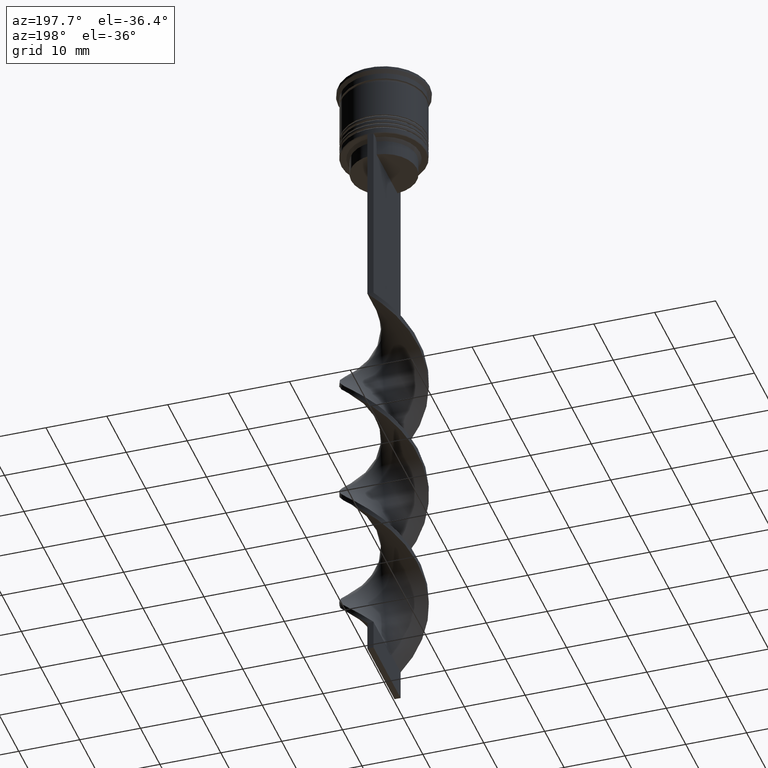
[diagram: clean part render]
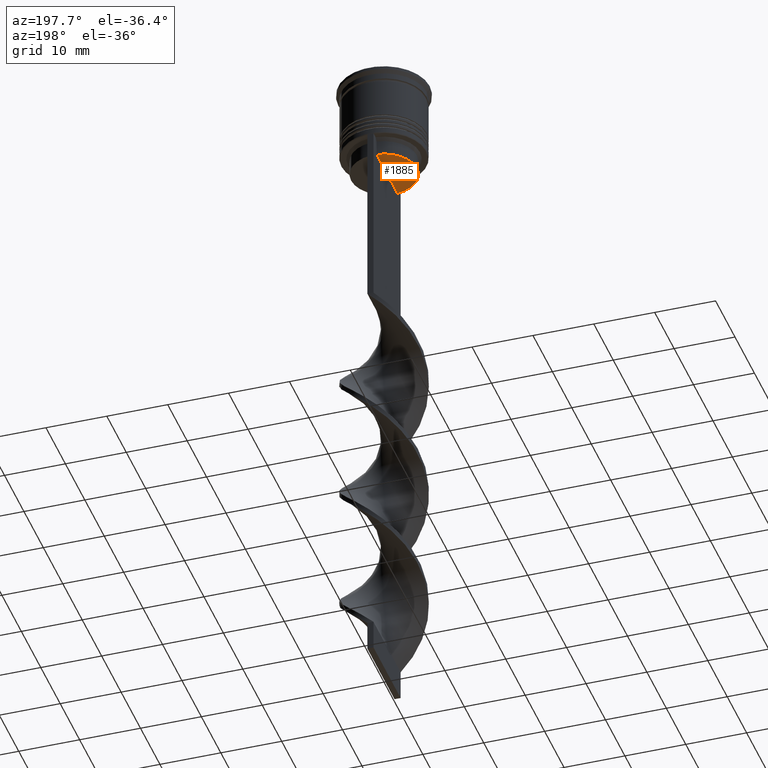
[diagram: same view with one face highlighted and labeled with its STEP entity id]
A machine part, auxiliary view. The second image highlights one B-rep face of the part: STEP entity #1885.
In plain terms, the highlighted planar face has unit normal (0, -0, 1).
Its self-contained STEP definition (entity closure, byte-faithful):
#82 = DIRECTION ( 'NONE',  ( 1.000000000000000000, 0.000000000000000000, 0.000000000000000000 ) ) ;
#328 = DIRECTION ( 'NONE',  ( -0.000000000000000000, -0.000000000000000000, 1.000000000000000000 ) ) ;
#457 = CARTESIAN_POINT ( 'NONE',  ( -0.5000000000000000000, 5.376802023508029826, -15.50000000000000000 ) ) ;
#579 = CARTESIAN_POINT ( 'NONE',  ( 0.000000000000000000, 5.400000000000003908, -15.50000000000000000 ) ) ;
#920 = PLANE ( 'NONE',  #969 ) ;
#934 = DIRECTION ( 'NONE',  ( 0.000000000000000000, -1.000000000000000000, 0.000000000000000000 ) ) ;
#969 = AXIS2_PLACEMENT_3D ( 'NONE', #579, #1183, #82 ) ;
#1002 = ORIENTED_EDGE ( 'NONE', *, *, #1941, .F. ) ;
#1168 = FACE_OUTER_BOUND ( 'NONE', #2080, .T. ) ;
#1183 = DIRECTION ( 'NONE',  ( 0.000000000000000000, -0.000000000000000000, 1.000000000000000000 ) ) ;
#1585 = CARTESIAN_POINT ( 'NONE',  ( -0.5000000000000000000, -5.376802023508029826, -15.50000000000000000 ) ) ;
#1597 = AXIS2_PLACEMENT_3D ( 'NONE', #3425, #328, #1967 ) ;
#1609 = VERTEX_POINT ( 'NONE', #1585 ) ;
#1747 = CARTESIAN_POINT ( 'NONE',  ( -0.5000000000000000000, 5.400000000000003908, -15.50000000000000000 ) ) ;
#1797 = ORIENTED_EDGE ( 'NONE', *, *, #3096, .T. ) ;
#1885 = ADVANCED_FACE ( 'NONE', ( #1168 ), #920, .F. ) ;
#1941 = EDGE_CURVE ( 'NONE', #2210, #1609, #2878, .T. ) ;
#1967 = DIRECTION ( 'NONE',  ( 1.000000000000000000, 0.000000000000000000, 0.000000000000000000 ) ) ;
#1991 = VECTOR ( 'NONE', #934, 1000.000000000000000 ) ;
#2080 = EDGE_LOOP ( 'NONE', ( #1002, #1797 ) ) ;
#2210 = VERTEX_POINT ( 'NONE', #457 ) ;
#2598 = LINE ( 'NONE', #1747, #1991 ) ;
#2878 = CIRCLE ( 'NONE', #1597, 5.400000000000003908 ) ;
#3096 = EDGE_CURVE ( 'NONE', #2210, #1609, #2598, .T. ) ;
#3425 = CARTESIAN_POINT ( 'NONE',  ( 0.000000000000000000, 0.000000000000000000, -15.50000000000000000 ) ) ;